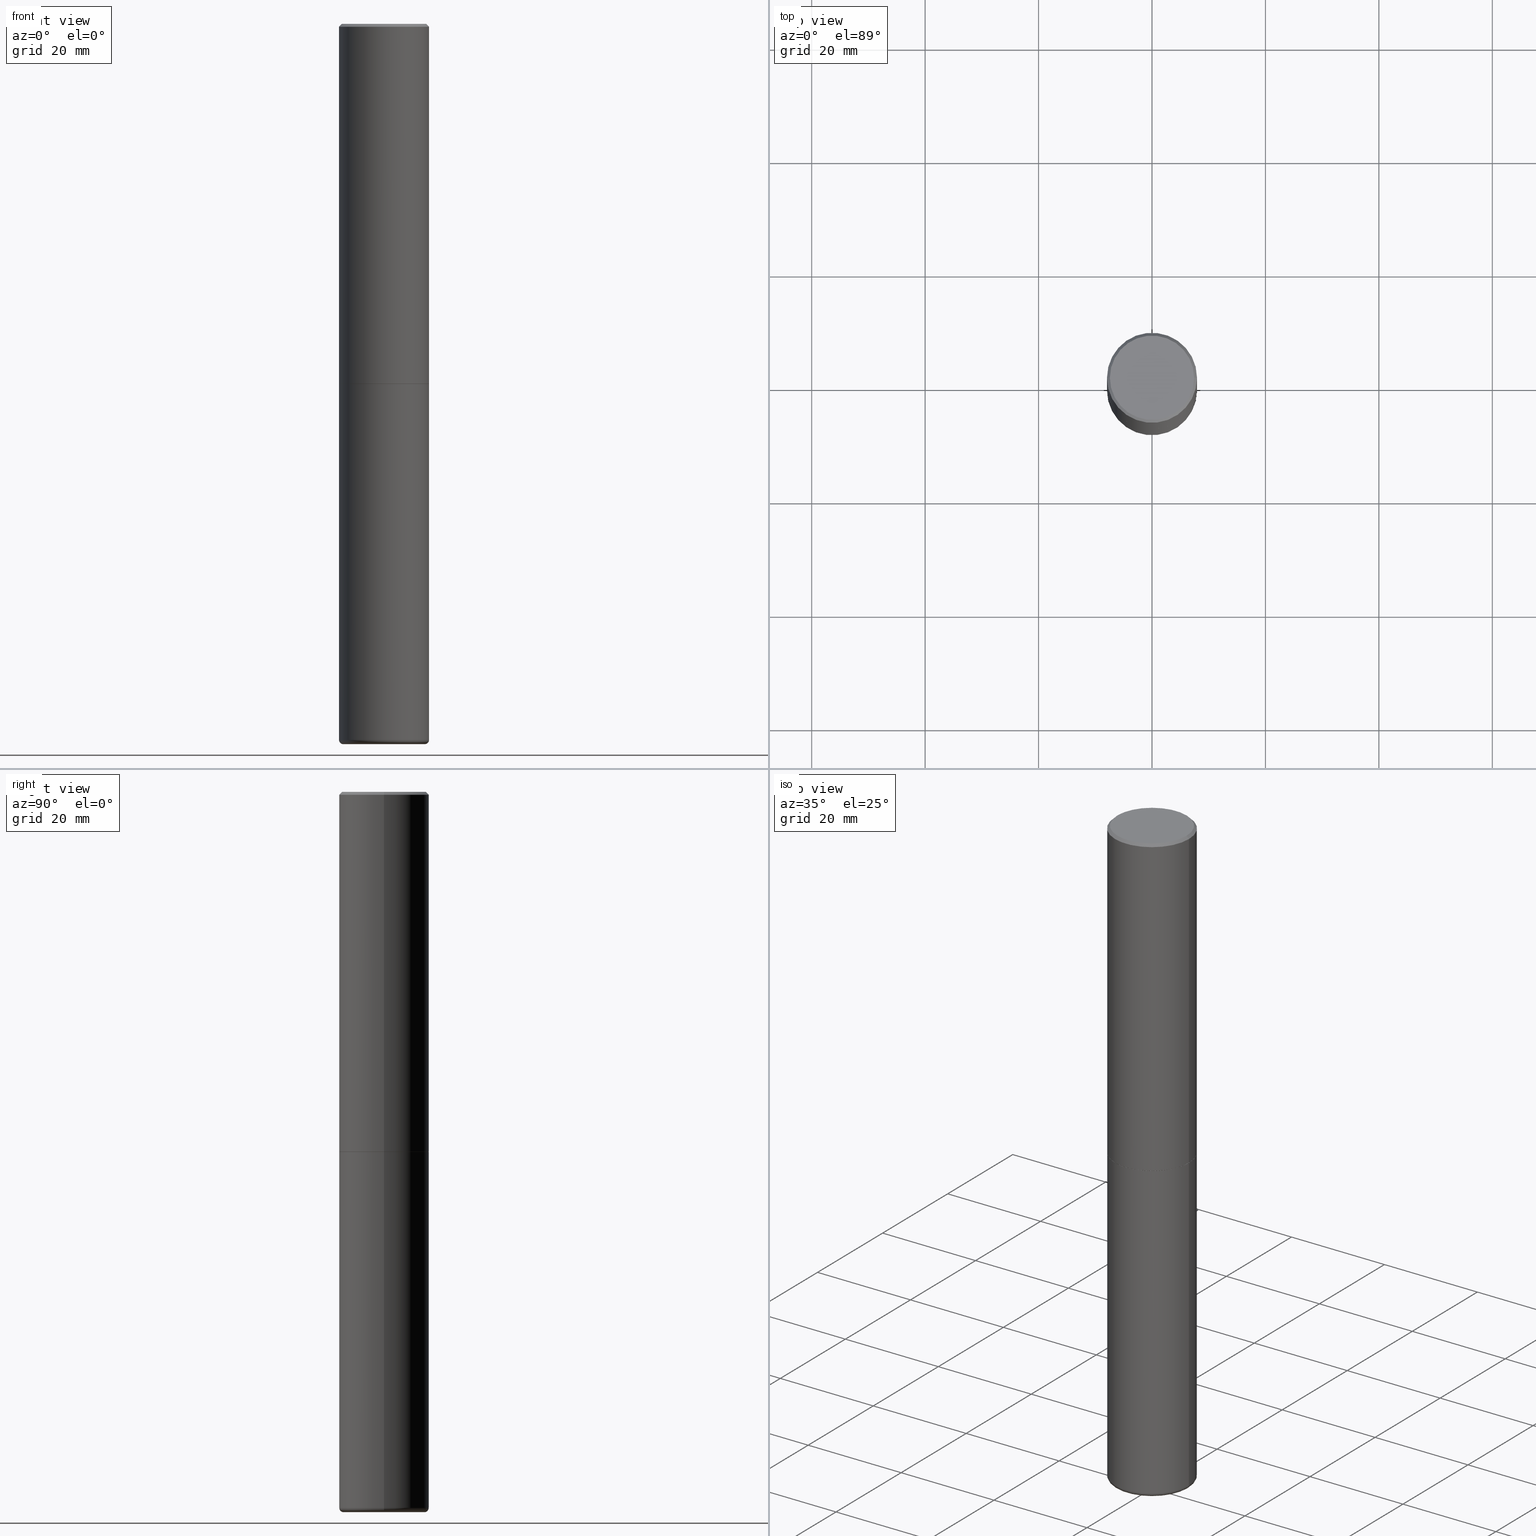
[diagram: canonical four-view strip — front | top / right | iso, engineering-drawing reading convention]
A machine part, canonical four-view strip (front | top / right | iso — engineering-drawing reading convention). The complete STEP part file that produces these views, byte-faithful:
ISO-10303-21;
HEADER;
FILE_DESCRIPTION (( 'STEP AP203' ),
    '1' );
FILE_NAME ('32570.STEP',
    '2022-04-26T19:38:32',
    ( '' ),
    ( '' ),
    'SwSTEP 2.0',
    'SolidWorks 2022',
    '' );
FILE_SCHEMA (( 'CONFIG_CONTROL_DESIGN' ));
ENDSEC;

DATA;
#1 = DIRECTION ( 'NONE',  ( -6.982962677686266711E-15, -1.000000000000000000, 3.491481338843145583E-15 ) ) ;
#2 = VECTOR ( 'NONE', #71, 39.37007874015748143 ) ;
#3 = DIRECTION ( 'NONE',  ( -2.445468806185136877E-29, 3.491481338843145188E-15, 1.000000000000000000 ) ) ;
#4 = DIRECTION ( 'NONE',  ( 1.000000000000000000, -6.982962677686266711E-15, 0.000000000000000000 ) ) ;
#5 = DATE_AND_TIME ( #36, #161 ) ;
#6 = CARTESIAN_POINT ( 'NONE',  ( 4.890937612370288047E-31, -6.982962677686311331E-17, -0.02000000000000005940 ) ) ;
#7 = CARTESIAN_POINT ( 'NONE',  ( -0.3114999999999999991, -6.515362725215152081E-15, -2.500000000000000000 ) ) ;
#8 = CIRCLE ( 'NONE', #306, 0.2819764278068817576 ) ;
#9 = CIRCLE ( 'NONE', #329, 0.3125000000000000555 ) ;
#10 = DIRECTION ( 'NONE',  ( 1.000000000000000000, -6.982962677686334553E-15, 0.000000000000000000 ) ) ;
#11 = DIRECTION ( 'NONE',  ( -2.445468806185136877E-29, 3.491481338843145188E-15, 1.000000000000000000 ) ) ;
#12 = CC_DESIGN_PERSON_AND_ORGANIZATION_ASSIGNMENT ( #404, #131, ( #362 ) ) ;
#13 = CARTESIAN_POINT ( 'NONE',  ( 3.440202120538231918E-18, -1.744020596027749936E-14, -4.995073513999096271 ) ) ;
#14 = FACE_OUTER_BOUND ( 'NONE', #268, .T. ) ;
#15 = DIRECTION ( 'NONE',  ( -2.445468806185136597E-29, 3.491481338843145583E-15, 1.000000000000000000 ) ) ;
#16 = VERTEX_POINT ( 'NONE', #409 ) ;
#17 = ADVANCED_FACE ( 'NONE', ( #346 ), #171, .F. ) ;
#18 = ORIENTED_EDGE ( 'NONE', *, *, #356, .F. ) ;
#19 = CARTESIAN_POINT ( 'NONE',  ( 0.000000000000000000, 0.000000000000000000, 0.000000000000000000 ) ) ;
#20 = APPLICATION_CONTEXT ( 'configuration controlled 3d designs of mechanical parts and assemblies' ) ;
#21 = APPROVAL_PERSON_ORGANIZATION ( #335, #178, #240 ) ;
#22 = ADVANCED_FACE ( 'NONE', ( #378 ), #104, .T. ) ;
#23 = ORIENTED_EDGE ( 'NONE', *, *, #228, .T. ) ;
#24 = CC_DESIGN_PERSON_AND_ORGANIZATION_ASSIGNMENT ( #28, #135, ( #239 ) ) ;
#25 = ORIENTED_EDGE ( 'NONE', *, *, #395, .T. ) ;
#26 = APPROVAL_ROLE ( '' ) ;
#27 = ORIENTED_EDGE ( 'NONE', *, *, #210, .T. ) ;
#28 = PERSON_AND_ORGANIZATION ( #273, #220 ) ;
#29 = EDGE_CURVE ( 'NONE', #296, #238, #383, .T. ) ;
#30 = ORIENTED_EDGE ( 'NONE', *, *, #158, .F. ) ;
#31 = DIRECTION ( 'NONE',  ( 1.000000000000000000, -6.982962677686266711E-15, 4.876067333457696203E-29 ) ) ;
#32 = CARTESIAN_POINT ( 'NONE',  ( -0.2819764278068823682, -1.548835986976738614E-14, -4.999995430854689893 ) ) ;
#33 = PERSON_AND_ORGANIZATION ( #273, #220 ) ;
#34 = CC_DESIGN_APPROVAL ( #55, ( #389 ) ) ;
#35 = ORIENTED_EDGE ( 'NONE', *, *, #210, .F. ) ;
#36 = CALENDAR_DATE ( 2022, 26, 4 ) ;
#37 = CC_DESIGN_PERSON_AND_ORGANIZATION_ASSIGNMENT ( #102, #410, ( #362 ) ) ;
#38 = DIRECTION ( 'NONE',  ( 1.000000000000000000, -6.982962677686262766E-15, 0.000000000000000000 ) ) ;
#39 = EDGE_CURVE ( 'NONE', #238, #393, #245, .T. ) ;
#40 = CARTESIAN_POINT ( 'NONE',  ( -3.440202120293926164E-18, -1.744020596027749936E-14, -4.995073513999096271 ) ) ;
#41 = DIRECTION ( 'NONE',  ( 2.445468806185136597E-29, -3.491481338843145583E-15, -1.000000000000000000 ) ) ;
#42 = LOCAL_TIME ( 15, 38, 32.00000000000000000, #276 ) ;
#43 = CARTESIAN_POINT ( 'NONE',  ( 1.222733285722335682E-28, -1.745739074113014277E-14, -4.999995430854689893 ) ) ;
#44 = DIRECTION ( 'NONE',  ( 2.438088387897960049E-29, -3.491481338843145188E-15, -1.000000000000000000 ) ) ;
#45 = DIRECTION ( 'NONE',  ( -2.445468806185136597E-29, 3.491481338843145583E-15, 1.000000000000000000 ) ) ;
#46 = VERTEX_POINT ( 'NONE', #140 ) ;
#47 = DIRECTION ( 'NONE',  ( 7.105427357601001859E-15, 1.000000000000000000, -3.491481338843145583E-15 ) ) ;
#48 = AXIS2_PLACEMENT_3D ( 'NONE', #243, #244, #372 ) ;
#49 =( GEOMETRIC_REPRESENTATION_CONTEXT ( 3 ) GLOBAL_UNCERTAINTY_ASSIGNED_CONTEXT ( ( #376 ) ) GLOBAL_UNIT_ASSIGNED_CONTEXT ( ( #54, #193, #159 ) ) REPRESENTATION_CONTEXT ( 'NONE', 'WORKASPACE' ) );
#50 = ORIENTED_EDGE ( 'NONE', *, *, #384, .T. ) ;
#51 = CYLINDRICAL_SURFACE ( 'NONE', #83, 0.3124999999999998890 ) ;
#52 = CARTESIAN_POINT ( 'NONE',  ( 0.3124999999999998890, -2.182175836776957558E-15, 1.523805242436229235E-29 ) ) ;
#53 = ORIENTED_EDGE ( 'NONE', *, *, #282, .T. ) ;
#54 =( CONVERSION_BASED_UNIT ( 'INCH', #401 ) LENGTH_UNIT ( ) NAMED_UNIT ( #152 ) );
#55 = APPROVAL ( #202, 'UNSPECIFIED' ) ;
#56 = CIRCLE ( 'NONE', #388, 0.3125000000000000555 ) ;
#57 = ORIENTED_EDGE ( 'NONE', *, *, #347, .F. ) ;
#58 = LOCAL_TIME ( 15, 38, 32.00000000000000000, #84 ) ;
#59 = DIRECTION ( 'NONE',  ( 1.000000000000000000, -6.982962677686264344E-15, 0.000000000000000000 ) ) ;
#60 = EDGE_LOOP ( 'NONE', ( #432, #154, #27, #57 ) ) ;
#61 = VERTEX_POINT ( 'NONE', #32 ) ;
#62 = EDGE_CURVE ( 'NONE', #296, #61, #196, .T. ) ;
#63 = ORIENTED_EDGE ( 'NONE', *, *, #434, .F. ) ;
#64 = APPROVAL_STATUS ( 'not_yet_approved' ) ;
#65 = AXIS2_PLACEMENT_3D ( 'NONE', #351, #217, #317 ) ;
#66 = CONICAL_SURFACE ( 'NONE', #358, 2255.510300424564321, 1.553343034274960788 ) ;
#67 = CARTESIAN_POINT ( 'NONE',  ( 6.113672015462842613E-29, -8.728703347107864943E-15, -2.500000000000000000 ) ) ;
#68 = DIRECTION ( 'NONE',  ( -2.445468806185136597E-29, 3.491481338843145583E-15, 1.000000000000000000 ) ) ;
#69 = SECURITY_CLASSIFICATION_LEVEL ( 'unclassified' ) ;
#70 = EDGE_CURVE ( 'NONE', #298, #80, #345, .T. ) ;
#71 = DIRECTION ( 'NONE',  ( 0.7071067811865472397, -7.319954787623254468E-15, -0.7071067811865477948 ) ) ;
#72 = AXIS2_PLACEMENT_3D ( 'NONE', #67, #99, #374 ) ;
#73 = DIRECTION ( 'NONE',  ( -2.445468806185136597E-29, 3.491481338843145583E-15, 1.000000000000000000 ) ) ;
#74 = FACE_OUTER_BOUND ( 'NONE', #60, .T. ) ;
#75 = DIRECTION ( 'NONE',  ( 0.9998476951563914916, -6.920387862090559512E-15, -0.01745240643727605234 ) ) ;
#76 = DIRECTION ( 'NONE',  ( -2.445468806185136597E-29, 3.491481338843145583E-15, 1.000000000000000000 ) ) ;
#77 = CARTESIAN_POINT ( 'NONE',  ( 1.084935959191941074E-27, -1.549001011903226036E-13, -44.36515225415657682 ) ) ;
#78 = VECTOR ( 'NONE', #142, 39.37007874015748143 ) ;
#79 = FACE_OUTER_BOUND ( 'NONE', #426, .T. ) ;
#80 = VERTEX_POINT ( 'NONE', #339 ) ;
#81 = CARTESIAN_POINT ( 'NONE',  ( 4.890937612370288047E-31, -6.982962677686311331E-17, -0.02000000000000005940 ) ) ;
#82 = LINE ( 'NONE', #424, #126 ) ;
#83 = AXIS2_PLACEMENT_3D ( 'NONE', #417, #45, #350 ) ;
#84 = COORDINATED_UNIVERSAL_TIME_OFFSET ( 5, 0, .BEHIND. ) ;
#85 = CC_DESIGN_DATE_AND_TIME_ASSIGNMENT ( #5, #139, ( #389 ) ) ;
#86 = VERTEX_POINT ( 'NONE', #280 ) ;
#87 = DIRECTION ( 'NONE',  ( 1.000000000000000000, -6.982962677686269077E-15, 0.000000000000000000 ) ) ;
#88 = DESIGN_CONTEXT ( 'detailed design', #20, 'design' ) ;
#89 = AXIS2_PLACEMENT_3D ( 'NONE', #223, #385, #382 ) ;
#90 = ORIENTED_EDGE ( 'NONE', *, *, #333, .F. ) ;
#91 = AXIS2_PLACEMENT_3D ( 'NONE', #117, #394, #397 ) ;
#92 = DIRECTION ( 'NONE',  ( 1.000000000000000000, -6.982962677686265133E-15, 0.000000000000000000 ) ) ;
#93 = ORIENTED_EDGE ( 'NONE', *, *, #114, .T. ) ;
#94 = MECHANICAL_CONTEXT ( 'NONE', #326, 'mechanical' ) ;
#95 = ORIENTED_EDGE ( 'NONE', *, *, #192, .T. ) ;
#96 = PERSON_AND_ORGANIZATION_ROLE ( 'creator' ) ;
#97 = VERTEX_POINT ( 'NONE', #180 ) ;
#98 = AXIS2_PLACEMENT_3D ( 'NONE', #134, #416, #31 ) ;
#99 = DIRECTION ( 'NONE',  ( -2.445468806185136597E-29, 3.491481338843145583E-15, 1.000000000000000000 ) ) ;
#100 = DATE_AND_TIME ( #267, #151 ) ;
#101 = CARTESIAN_POINT ( 'NONE',  ( 0.3124999999999996669, -2.213735251080464545E-15, -0.02000000000000005940 ) ) ;
#102 = PERSON_AND_ORGANIZATION ( #273, #220 ) ;
#103 = AXIS2_PLACEMENT_3D ( 'NONE', #313, #44, #185 ) ;
#104 = CYLINDRICAL_SURFACE ( 'NONE', #150, 0.3124999999999998890 ) ;
#105 = DIRECTION ( 'NONE',  ( -2.445468806185136597E-29, 3.491481338843145583E-15, 1.000000000000000000 ) ) ;
#106 = FACE_OUTER_BOUND ( 'NONE', #188, .T. ) ;
#107 = CARTESIAN_POINT ( 'NONE',  ( 0.2819764278068823682, -1.939188945951802545E-14, -4.999995430854689893 ) ) ;
#108 = CYLINDRICAL_SURFACE ( 'NONE', #89, 0.3124999999999998890 ) ;
#109 = CIRCLE ( 'NONE', #429, 0.3114999999999999991 ) ;
#110 = VECTOR ( 'NONE', #11, 39.37007874015748143 ) ;
#111 = ORIENTED_EDGE ( 'NONE', *, *, #141, .T. ) ;
#112 = FACE_OUTER_BOUND ( 'NONE', #442, .T. ) ;
#113 = CARTESIAN_POINT ( 'NONE',  ( 0.3124999999999996669, -2.213735251080464545E-15, -0.02000000000000005940 ) ) ;
#114 = EDGE_CURVE ( 'NONE', #86, #16, #190, .T. ) ;
#115 = PRODUCT_DEFINITION_SHAPE ( 'NONE', 'NONE',  #389 ) ;
#116 = EDGE_LOOP ( 'NONE', ( #162, #423, #265, #200 ) ) ;
#117 = CARTESIAN_POINT ( 'NONE',  ( 6.113672015462842613E-29, -8.728703347107864943E-15, -2.500000000000000000 ) ) ;
#118 = VECTOR ( 'NONE', #3, 39.37007874015748143 ) ;
#119 = CIRCLE ( 'NONE', #252, 0.3125000000000000000 ) ;
#120 = LINE ( 'NONE', #52, #315 ) ;
#121 = EDGE_LOOP ( 'NONE', ( #331, #261, #50, #400 ) ) ;
#122 = PERSON_AND_ORGANIZATION_ROLE ( 'design_owner' ) ;
#123 = ORIENTED_EDGE ( 'NONE', *, *, #70, .T. ) ;
#124 = PERSON_AND_ORGANIZATION ( #273, #220 ) ;
#125 = EDGE_CURVE ( 'NONE', #80, #365, #225, .T. ) ;
#126 = VECTOR ( 'NONE', #419, 39.37007874015748143 ) ;
#127 = EDGE_LOOP ( 'NONE', ( #405, #168, #303 ) ) ;
#128 = CONICAL_SURFACE ( 'NONE', #307, 2255.510300424564321, 1.553343034274960788 ) ;
#129 = DIRECTION ( 'NONE',  ( -2.445468806185136597E-29, 3.491481338843145583E-15, 1.000000000000000000 ) ) ;
#130 = EDGE_LOOP ( 'NONE', ( #299, #438 ) ) ;
#131 = PERSON_AND_ORGANIZATION_ROLE ( 'creator' ) ;
#132 = ORIENTED_EDGE ( 'NONE', *, *, #186, .F. ) ;
#133 = MANIFOLD_SOLID_BREP ( 'Body-Move/Copy2[2]', #377 ) ;
#134 = CARTESIAN_POINT ( 'NONE',  ( -3.131554243005659264E-46, 4.471029511141341874E-32, 1.280553747030123384E-17 ) ) ;
#135 = PERSON_AND_ORGANIZATION_ROLE ( 'classification_officer' ) ;
#136 = MANIFOLD_SOLID_BREP ( 'Body-Move/Copy2[1]', #293 ) ;
#137 = CARTESIAN_POINT ( 'NONE',  ( 1.222733285722335682E-28, -1.745739074113014277E-14, -4.999995430854689893 ) ) ;
#138 = DIRECTION ( 'NONE',  ( -2.445468806185136597E-29, 3.491481338843145583E-15, 1.000000000000000000 ) ) ;
#139 = DATE_TIME_ROLE ( 'creation_date' ) ;
#140 = CARTESIAN_POINT ( 'NONE',  ( -0.3114999999999999991, -6.510064270866929679E-15, -2.500000000000000000 ) ) ;
#141 = EDGE_CURVE ( 'NONE', #363, #61, #411, .T. ) ;
#142 = DIRECTION ( 'NONE',  ( -0.7071067811866441621, 7.493145998870704414E-15, 0.7071067811864508723 ) ) ;
#143 = AXIS2_PLACEMENT_3D ( 'NONE', #137, #73, #375 ) ;
#144 = CONICAL_SURFACE ( 'NONE', #262, 0.3114999999999999991, 0.7853981633975849475 ) ;
#145 = CARTESIAN_POINT ( 'NONE',  ( 1.215397996674012611E-28, -1.735266225405043020E-14, -4.969999999999998863 ) ) ;
#146 = DIRECTION ( 'NONE',  ( 2.445468806185136597E-29, -3.491481338843145583E-15, -1.000000000000000000 ) ) ;
#147 = CARTESIAN_POINT ( 'NONE',  ( 0.3124999999999997224, -1.953483809082738382E-14, -4.969999999999998863 ) ) ;
#148 = ADVANCED_FACE ( 'NONE', ( #106 ), #278, .T. ) ;
#149 = FACE_OUTER_BOUND ( 'NONE', #121, .T. ) ;
#150 = AXIS2_PLACEMENT_3D ( 'NONE', #246, #412, #241 ) ;
#151 = LOCAL_TIME ( 15, 38, 32.00000000000000000, #167 ) ;
#152 = DIMENSIONAL_EXPONENTS ( 1.000000000000000000, 0.000000000000000000, 0.000000000000000000, 0.000000000000000000, 0.000000000000000000, 0.000000000000000000, 0.000000000000000000 ) ;
#153 = CARTESIAN_POINT ( 'NONE',  ( -3.131554243005659264E-46, 4.471029511141341874E-32, 1.280553747030123384E-17 ) ) ;
#154 = ORIENTED_EDGE ( 'NONE', *, *, #158, .T. ) ;
#155 = CARTESIAN_POINT ( 'NONE',  ( 1.221769874338742069E-28, -1.743676575815708318E-14, -4.995073513999096271 ) ) ;
#156 = ADVANCED_FACE ( 'NONE', ( #308 ), #219, .T. ) ;
#157 = FACE_OUTER_BOUND ( 'NONE', #130, .T. ) ;
#158 = EDGE_CURVE ( 'NONE', #86, #365, #312, .T. ) ;
#159 =( NAMED_UNIT ( * ) SI_UNIT ( $, .STERADIAN. ) SOLID_ANGLE_UNIT ( ) );
#160 = CIRCLE ( 'NONE', #72, 0.3114999999999999991 ) ;
#161 = LOCAL_TIME ( 15, 38, 32.00000000000000000, #340 ) ;
#162 = ORIENTED_EDGE ( 'NONE', *, *, #39, .T. ) ;
#163 = ADVANCED_FACE ( 'NONE', ( #74 ), #302, .T. ) ;
#164 = ORIENTED_EDGE ( 'NONE', *, *, #186, .T. ) ;
#165 = ORIENTED_EDGE ( 'NONE', *, *, #368, .T. ) ;
#166 = ORIENTED_EDGE ( 'NONE', *, *, #62, .F. ) ;
#167 = COORDINATED_UNIVERSAL_TIME_OFFSET ( 5, 0, .BEHIND. ) ;
#168 = ORIENTED_EDGE ( 'NONE', *, *, #333, .T. ) ;
#169 = DATE_AND_TIME ( #174, #42 ) ;
#170 = DIRECTION ( 'NONE',  ( -2.445468806185136597E-29, 3.491481338843145583E-15, 1.000000000000000000 ) ) ;
#171 = PLANE ( 'NONE',  #250 ) ;
#172 = DIRECTION ( 'NONE',  ( -0.9998476951563914916, 6.920964387254063099E-15, -0.01745240643727605234 ) ) ;
#173 = AXIS2_PLACEMENT_3D ( 'NONE', #153, #170, #373 ) ;
#174 = CALENDAR_DATE ( 2022, 26, 4 ) ;
#175 = LOCAL_TIME ( 15, 38, 32.00000000000000000, #209 ) ;
#176 = CARTESIAN_POINT ( 'NONE',  ( 6.111226546656657010E-29, -8.725211865769021935E-15, -2.499000000000000110 ) ) ;
#177 = DATE_TIME_ROLE ( 'classification_date' ) ;
#178 = APPROVAL ( #64, 'UNSPECIFIED' ) ;
#179 = EDGE_CURVE ( 'NONE', #46, #222, #160, .T. ) ;
#180 = CARTESIAN_POINT ( 'NONE',  ( -0.3125000000000000000, -1.082023675132883449E-14, -2.500000000000000000 ) ) ;
#181 = EDGE_LOOP ( 'NONE', ( #361, #164, #367, #304 ) ) ;
#182 = CARTESIAN_POINT ( 'NONE',  ( 6.113672015462842613E-29, -8.728703347107864943E-15, -2.500000000000000000 ) ) ;
#183 = AXIS2_PLACEMENT_3D ( 'NONE', #81, #146, #221 ) ;
#184 = AXIS2_PLACEMENT_3D ( 'NONE', #19, #430, #300 ) ;
#185 = DIRECTION ( 'NONE',  ( -1.000000000000000000, 6.982962677686265922E-15, -4.876176775795935793E-29 ) ) ;
#186 = EDGE_CURVE ( 'NONE', #298, #263, #56, .T. ) ;
#187 = CARTESIAN_POINT ( 'NONE',  ( -0.3125000000000000555, -2.177074697022625986E-15, -2.499000000000000110 ) ) ;
#188 = EDGE_LOOP ( 'NONE', ( #18, #95, #205, #414 ) ) ;
#189 = FACE_OUTER_BOUND ( 'NONE', #284, .T. ) ;
#190 = CIRCLE ( 'NONE', #98, 0.2924999999999995937 ) ;
#191 = ORIENTED_EDGE ( 'NONE', *, *, #179, .T. ) ;
#192 = EDGE_CURVE ( 'NONE', #61, #296, #8, .T. ) ;
#193 =( NAMED_UNIT ( * ) PLANE_ANGLE_UNIT ( ) SI_UNIT ( $, .RADIAN. ) );
#194 = CC_DESIGN_PERSON_AND_ORGANIZATION_ASSIGNMENT ( #33, #96, ( #389 ) ) ;
#195 = ORIENTED_EDGE ( 'NONE', *, *, #301, .T. ) ;
#196 = CIRCLE ( 'NONE', #143, 0.2819764278068817576 ) ;
#197 = VECTOR ( 'NONE', #353, 39.37007874015748143 ) ;
#198 = EDGE_LOOP ( 'NONE', ( #25, #123, #35, #259 ) ) ;
#199 = DIRECTION ( 'NONE',  ( 0.7071067811866441621, -2.468850131083269169E-15, 0.7071067811864508723 ) ) ;
#200 = ORIENTED_EDGE ( 'NONE', *, *, #384, .F. ) ;
#201 = CC_DESIGN_PERSON_AND_ORGANIZATION_ASSIGNMENT ( #428, #122, ( #242 ) ) ;
#202 = APPROVAL_STATUS ( 'not_yet_approved' ) ;
#203 = VERTEX_POINT ( 'NONE', #381 ) ;
#204 = AXIS2_PLACEMENT_3D ( 'NONE', #349, #1, #10 ) ;
#205 = ORIENTED_EDGE ( 'NONE', *, *, #29, .T. ) ;
#206 = CIRCLE ( 'NONE', #230, 0.02999999999999971440 ) ;
#207 = CARTESIAN_POINT ( 'NONE',  ( 2.042516583223230173E-15, 0.2924999999999995937, -1.014855522876468194E-15 ) ) ;
#208 = DIRECTION ( 'NONE',  ( 1.000000000000000000, -6.982962677686264344E-15, 0.000000000000000000 ) ) ;
#209 = COORDINATED_UNIVERSAL_TIME_OFFSET ( 5, 0, .BEHIND. ) ;
#210 = EDGE_CURVE ( 'NONE', #365, #80, #407, .T. ) ;
#211 = DIRECTION ( 'NONE',  ( 2.445468806185136597E-29, -3.491481338843145583E-15, -1.000000000000000000 ) ) ;
#212 = CALENDAR_DATE ( 2022, 26, 4 ) ;
#213 = VECTOR ( 'NONE', #199, 39.37007874015748143 ) ;
#214 = CARTESIAN_POINT ( 'NONE',  ( 1.215397996674012611E-28, -1.735266225405043020E-14, -4.969999999999998863 ) ) ;
#215 = DIRECTION ( 'NONE',  ( -1.000000000000000000, 6.982962677686266711E-15, 0.000000000000000000 ) ) ;
#216 = LINE ( 'NONE', #13, #288 ) ;
#217 = DIRECTION ( 'NONE',  ( -2.445468806185136597E-29, 3.491481338843145583E-15, 1.000000000000000000 ) ) ;
#218 = CARTESIAN_POINT ( 'NONE',  ( -0.3124999999999996669, 2.112346210000092682E-15, -0.02000000000000005940 ) ) ;
#219 = TOROIDAL_SURFACE ( 'NONE', #48, 0.2825000000000000289, 0.02999999999999973868 ) ;
#220 = ORGANIZATION ( 'UNSPECIFIED', 'UNSPECIFIED', '' ) ;
#221 = DIRECTION ( 'NONE',  ( -1.000000000000000000, 6.982962677686266711E-15, 0.000000000000000000 ) ) ;
#222 = VERTEX_POINT ( 'NONE', #422 ) ;
#223 = CARTESIAN_POINT ( 'NONE',  ( 0.000000000000000000, 0.000000000000000000, 0.000000000000000000 ) ) ;
#224 = CARTESIAN_POINT ( 'NONE',  ( 6.113672015462842613E-29, -8.728703347107864943E-15, -2.500000000000000000 ) ) ;
#225 = CIRCLE ( 'NONE', #370, 0.3124999999999996669 ) ;
#226 = CALENDAR_DATE ( 2022, 26, 4 ) ;
#227 = ORIENTED_EDGE ( 'NONE', *, *, #356, .T. ) ;
#228 = EDGE_CURVE ( 'NONE', #16, #86, #320, .T. ) ;
#229 = FACE_OUTER_BOUND ( 'NONE', #396, .T. ) ;
#230 = AXIS2_PLACEMENT_3D ( 'NONE', #386, #47, #321 ) ;
#231 = CC_DESIGN_DATE_AND_TIME_ASSIGNMENT ( #169, #177, ( #239 ) ) ;
#232 = ORIENTED_EDGE ( 'NONE', *, *, #228, .F. ) ;
#233 = ORIENTED_EDGE ( 'NONE', *, *, #347, .T. ) ;
#234 = CARTESIAN_POINT ( 'NONE',  ( 6.113672015462842613E-29, -8.728703347107864943E-15, -2.500000000000000000 ) ) ;
#235 = ORIENTED_EDGE ( 'NONE', *, *, #125, .T. ) ;
#236 = APPROVAL_STATUS ( 'not_yet_approved' ) ;
#237 = ADVANCED_FACE ( 'NONE', ( #14 ), #420, .T. ) ;
#238 = VERTEX_POINT ( 'NONE', #147 ) ;
#239 = SECURITY_CLASSIFICATION ( '', '', #69 ) ;
#240 = APPROVAL_ROLE ( '' ) ;
#241 = DIRECTION ( 'NONE',  ( 1.000000000000000000, -6.982962677686266711E-15, 4.876176775795935232E-29 ) ) ;
#242 = PRODUCT ( '32570', '32570', '', ( #94 ) ) ;
#243 = CARTESIAN_POINT ( 'NONE',  ( 1.215397996674012611E-28, -1.735266225405043020E-14, -4.969999999999998863 ) ) ;
#244 = DIRECTION ( 'NONE',  ( -2.445468806185136597E-29, 3.491481338843145583E-15, 1.000000000000000000 ) ) ;
#245 = CIRCLE ( 'NONE', #336, 0.3124999999999997224 ) ;
#246 = CARTESIAN_POINT ( 'NONE',  ( 0.000000000000000000, 0.000000000000000000, 0.000000000000000000 ) ) ;
#247 = CARTESIAN_POINT ( 'NONE',  ( -0.3124999999999998890, 2.220446049250312292E-15, -1.537167215704657391E-29 ) ) ;
#248 = DIRECTION ( 'NONE',  ( 1.000000000000000000, -6.982962677686260400E-15, 0.000000000000000000 ) ) ;
#249 = DIRECTION ( 'NONE',  ( 1.000000000000000000, -6.982962677686265133E-15, 0.000000000000000000 ) ) ;
#250 = AXIS2_PLACEMENT_3D ( 'NONE', #207, #305, #342 ) ;
#251 = FACE_OUTER_BOUND ( 'NONE', #198, .T. ) ;
#252 = AXIS2_PLACEMENT_3D ( 'NONE', #224, #15, #249 ) ;
#253 = PLANE ( 'NONE',  #103 ) ;
#254 = LINE ( 'NONE', #7, #78 ) ;
#255 = DIRECTION ( 'NONE',  ( -1.000000000000000000, 6.982962677686266711E-15, 0.000000000000000000 ) ) ;
#256 = AXIS2_PLACEMENT_3D ( 'NONE', #279, #415, #92 ) ;
#257 = LINE ( 'NONE', #392, #213 ) ;
#258 = EDGE_CURVE ( 'NONE', #263, #365, #82, .T. ) ;
#259 = ORIENTED_EDGE ( 'NONE', *, *, #258, .F. ) ;
#260 = FACE_OUTER_BOUND ( 'NONE', #127, .T. ) ;
#261 = ORIENTED_EDGE ( 'NONE', *, *, #418, .T. ) ;
#262 = AXIS2_PLACEMENT_3D ( 'NONE', #234, #129, #87 ) ;
#263 = VERTEX_POINT ( 'NONE', #316 ) ;
#264 = DIRECTION ( 'NONE',  ( 2.445468806185136597E-29, -3.491481338843145583E-15, -1.000000000000000000 ) ) ;
#265 = ORIENTED_EDGE ( 'NONE', *, *, #301, .F. ) ;
#266 = PRODUCT_RELATED_PRODUCT_CATEGORY ( 'detail', '', ( #242 ) ) ;
#267 = CALENDAR_DATE ( 2022, 26, 4 ) ;
#268 = EDGE_LOOP ( 'NONE', ( #30, #232, #233, #235 ) ) ;
#269 = APPROVAL_DATE_TIME ( #359, #55 ) ;
#270 = AXIS2_PLACEMENT_3D ( 'NONE', #6, #211, #215 ) ;
#271 = CARTESIAN_POINT ( 'NONE',  ( 4.890937612370288047E-31, -6.982962677686311331E-17, -0.02000000000000005940 ) ) ;
#272 = APPROVAL_PERSON_ORGANIZATION ( #369, #325, #413 ) ;
#273 = PERSON ( 'UNSPECIFIED', 'UNSPECIFIED', 'UNSPECIFIED', ('UNSPECIFIED'), ('UNSPECIFIED'), ('UNSPECIFIED') ) ;
#274 = DIRECTION ( 'NONE',  ( 1.000000000000000000, -6.982962677686262766E-15, 4.883557194083111219E-29 ) ) ;
#275 = DIRECTION ( 'NONE',  ( -2.445468806185136597E-29, 3.491481338843145583E-15, 1.000000000000000000 ) ) ;
#276 = COORDINATED_UNIVERSAL_TIME_OFFSET ( 5, 0, .BEHIND. ) ;
#277 = DIRECTION ( 'NONE',  ( -2.445468806185136597E-29, 3.491481338843145583E-15, 1.000000000000000000 ) ) ;
#278 = TOROIDAL_SURFACE ( 'NONE', #398, 0.2825000000000000289, 0.02999999999999973868 ) ;
#279 = CARTESIAN_POINT ( 'NONE',  ( 6.113672015462842613E-29, -8.728703347107864943E-15, -2.500000000000000000 ) ) ;
#280 = CARTESIAN_POINT ( 'NONE',  ( 0.2924999999999995937, -2.110215457714317564E-15, 1.280553747031575381E-17 ) ) ;
#281 = DIRECTION ( 'NONE',  ( -2.445468806185136597E-29, 3.491481338843145583E-15, 1.000000000000000000 ) ) ;
#282 = EDGE_CURVE ( 'NONE', #222, #46, #109, .T. ) ;
#283 = FACE_OUTER_BOUND ( 'NONE', #181, .T. ) ;
#284 = EDGE_LOOP ( 'NONE', ( #53, #165, #441, #63 ) ) ;
#285 = VECTOR ( 'NONE', #172, 39.37007874015747433 ) ;
#286 = ADVANCED_FACE ( 'NONE', ( #251 ), #108, .T. ) ;
#287 = DIRECTION ( 'NONE',  ( 1.000000000000000000, -6.982962677686269077E-15, 0.000000000000000000 ) ) ;
#288 = VECTOR ( 'NONE', #75, 39.37007874015747433 ) ;
#289 = CARTESIAN_POINT ( 'NONE',  ( 6.113672015462842613E-29, -8.728703347107864943E-15, -2.500000000000000000 ) ) ;
#290 = ORIENTED_EDGE ( 'NONE', *, *, #368, .F. ) ;
#291 = CARTESIAN_POINT ( 'NONE',  ( 6.111226546656657010E-29, -8.725211865769021935E-15, -2.499000000000000110 ) ) ;
#292 = ADVANCED_FACE ( 'NONE', ( #149 ), #380, .T. ) ;
#293 = CLOSED_SHELL ( 'NONE', ( #22, #156, #440, #341, #148, #292, #348 ) ) ;
#294 = ADVANCED_FACE ( 'NONE', ( #283 ), #51, .T. ) ;
#295 = CC_DESIGN_SECURITY_CLASSIFICATION ( #239, ( #362 ) ) ;
#296 = VERTEX_POINT ( 'NONE', #107 ) ;
#297 = APPLICATION_PROTOCOL_DEFINITION ( 'international standard', 'config_control_design', 1994, #326 ) ;
#298 = VERTEX_POINT ( 'NONE', #187 ) ;
#299 = ORIENTED_EDGE ( 'NONE', *, *, #282, .F. ) ;
#300 = DIRECTION ( 'NONE',  ( 1.000000000000000000, 0.000000000000000000, 0.000000000000000000 ) ) ;
#301 = EDGE_CURVE ( 'NONE', #203, #97, #119, .T. ) ;
#302 = CONICAL_SURFACE ( 'NONE', #270, 0.3124999999999996669, 0.7853981633974479459 ) ;
#303 = ORIENTED_EDGE ( 'NONE', *, *, #192, .F. ) ;
#304 = ORIENTED_EDGE ( 'NONE', *, *, #125, .F. ) ;
#305 = DIRECTION ( 'NONE',  ( 2.438088387897960049E-29, -3.491481338843145188E-15, -1.000000000000000000 ) ) ;
#306 = AXIS2_PLACEMENT_3D ( 'NONE', #43, #76, #248 ) ;
#307 = AXIS2_PLACEMENT_3D ( 'NONE', #77, #41, #357 ) ;
#308 = FACE_OUTER_BOUND ( 'NONE', #327, .T. ) ;
#309 = SHAPE_DEFINITION_REPRESENTATION ( #115, #435 ) ;
#310 = ORIENTED_EDGE ( 'NONE', *, *, #62, .T. ) ;
#311 = APPROVAL_DATE_TIME ( #100, #178 ) ;
#312 = LINE ( 'NONE', #101, #2 ) ;
#313 = CARTESIAN_POINT ( 'NONE',  ( 2.182175836777019089E-15, 0.3124999999999912847, -2.500000000000001332 ) ) ;
#314 = ADVANCED_FACE ( 'NONE', ( #189 ), #337, .T. ) ;
#315 = VECTOR ( 'NONE', #364, 39.37007874015748143 ) ;
#316 = CARTESIAN_POINT ( 'NONE',  ( 0.3125000000000000555, -1.090738770254598028E-14, -2.499000000000000110 ) ) ;
#317 = DIRECTION ( 'NONE',  ( 1.000000000000000000, -6.982962677686266711E-15, 0.000000000000000000 ) ) ;
#318 = LINE ( 'NONE', #247, #110 ) ;
#319 = LINE ( 'NONE', #218, #197 ) ;
#320 = CIRCLE ( 'NONE', #173, 0.2924999999999995937 ) ;
#321 = DIRECTION ( 'NONE',  ( -1.000000000000000000, 7.105427357600993970E-15, 0.000000000000000000 ) ) ;
#322 = APPROVAL_PERSON_ORGANIZATION ( #124, #55, #26 ) ;
#323 = DIRECTION ( 'NONE',  ( -2.445468806185136597E-29, 3.491481338843145583E-15, 1.000000000000000000 ) ) ;
#324 = EDGE_CURVE ( 'NONE', #393, #97, #318, .T. ) ;
#325 = APPROVAL ( #236, 'UNSPECIFIED' ) ;
#326 = APPLICATION_CONTEXT ( 'configuration controlled 3d designs of mechanical parts and assemblies' ) ;
#327 = EDGE_LOOP ( 'NONE', ( #310, #227, #403, #436 ) ) ;
#328 = CARTESIAN_POINT ( 'NONE',  ( -0.3124999999999997224, -1.513221620480011712E-14, -4.969999999999998863 ) ) ;
#329 = AXIS2_PLACEMENT_3D ( 'NONE', #291, #323, #59 ) ;
#330 = ORIENTED_EDGE ( 'NONE', *, *, #371, .T. ) ;
#331 = ORIENTED_EDGE ( 'NONE', *, *, #324, .F. ) ;
#332 = DIRECTION ( 'NONE',  ( -2.445468806185136597E-29, 3.491481338843145583E-15, 1.000000000000000000 ) ) ;
#333 = EDGE_CURVE ( 'NONE', #363, #296, #216, .T. ) ;
#334 = ORIENTED_EDGE ( 'NONE', *, *, #434, .T. ) ;
#335 = PERSON_AND_ORGANIZATION ( #273, #220 ) ;
#336 = AXIS2_PLACEMENT_3D ( 'NONE', #145, #277, #38 ) ;
#337 = CONICAL_SURFACE ( 'NONE', #421, 0.3114999999999999991, 0.7853981633975849475 ) ;
#338 = EDGE_LOOP ( 'NONE', ( #23, #93 ) ) ;
#339 = CARTESIAN_POINT ( 'NONE',  ( -0.3124999999999996669, 2.112346210000092682E-15, -0.02000000000000005940 ) ) ;
#340 = COORDINATED_UNIVERSAL_TIME_OFFSET ( 5, 0, .BEHIND. ) ;
#341 = ADVANCED_FACE ( 'NONE', ( #112 ), #128, .F. ) ;
#342 = DIRECTION ( 'NONE',  ( -1.000000000000000000, 6.982962677686265922E-15, -4.876176775795935793E-29 ) ) ;
#343 = DATE_AND_TIME ( #212, #175 ) ;
#344 = AXIS2_PLACEMENT_3D ( 'NONE', #433, #332, #439 ) ;
#345 = LINE ( 'NONE', #379, #118 ) ;
#346 = FACE_OUTER_BOUND ( 'NONE', #338, .T. ) ;
#347 = EDGE_CURVE ( 'NONE', #16, #80, #319, .T. ) ;
#348 = ADVANCED_FACE ( 'NONE', ( #79 ), #253, .F. ) ;
#349 = CARTESIAN_POINT ( 'NONE',  ( 0.2825000000000000289, -1.932534921049680023E-14, -4.969999999999998863 ) ) ;
#350 = DIRECTION ( 'NONE',  ( 1.000000000000000000, -6.982962677686266711E-15, 4.876176775795935232E-29 ) ) ;
#351 = CARTESIAN_POINT ( 'NONE',  ( 4.890937612370288047E-31, -6.982962677686311331E-17, -0.02000000000000005940 ) ) ;
#352 = CC_DESIGN_APPROVAL ( #325, ( #239 ) ) ;
#353 = DIRECTION ( 'NONE',  ( -0.7071067811865472397, 2.468850131082253905E-15, -0.7071067811865477948 ) ) ;
#354 = DIRECTION ( 'NONE',  ( 1.000000000000000000, -6.982962677686266711E-15, 4.876176775795935232E-29 ) ) ;
#355 = CARTESIAN_POINT ( 'NONE',  ( 0.000000000000000000, 0.000000000000000000, 0.000000000000000000 ) ) ;
#356 = EDGE_CURVE ( 'NONE', #61, #393, #206, .T. ) ;
#357 = DIRECTION ( 'NONE',  ( -1.000000000000000000, 6.982962677686266711E-15, 0.000000000000000000 ) ) ;
#358 = AXIS2_PLACEMENT_3D ( 'NONE', #366, #264, #255 ) ;
#359 = DATE_AND_TIME ( #226, #58 ) ;
#360 = PLANE ( 'NONE',  #91 ) ;
#361 = ORIENTED_EDGE ( 'NONE', *, *, #70, .F. ) ;
#362 = PRODUCT_DEFINITION_FORMATION_WITH_SPECIFIED_SOURCE ( 'ANY', '', #242, .NOT_KNOWN. ) ;
#363 = VERTEX_POINT ( 'NONE', #155 ) ;
#364 = DIRECTION ( 'NONE',  ( -2.445468806185136877E-29, 3.491481338843145188E-15, 1.000000000000000000 ) ) ;
#365 = VERTEX_POINT ( 'NONE', #113 ) ;
#366 = CARTESIAN_POINT ( 'NONE',  ( 1.084935959191941074E-27, -1.549001011903226036E-13, -44.36515225415657682 ) ) ;
#367 = ORIENTED_EDGE ( 'NONE', *, *, #258, .T. ) ;
#368 = EDGE_CURVE ( 'NONE', #46, #298, #254, .T. ) ;
#369 = PERSON_AND_ORGANIZATION ( #273, #220 ) ;
#370 = AXIS2_PLACEMENT_3D ( 'NONE', #271, #275, #4 ) ;
#371 = EDGE_CURVE ( 'NONE', #97, #203, #431, .T. ) ;
#372 = DIRECTION ( 'NONE',  ( 1.000000000000000000, -6.982962677686262766E-15, 4.883557194083111219E-29 ) ) ;
#373 = DIRECTION ( 'NONE',  ( 1.000000000000000000, -6.982962677686266711E-15, 4.876067333457696203E-29 ) ) ;
#374 = DIRECTION ( 'NONE',  ( 1.000000000000000000, -6.982962677686269077E-15, 0.000000000000000000 ) ) ;
#375 = DIRECTION ( 'NONE',  ( 1.000000000000000000, -6.982962677686260400E-15, 0.000000000000000000 ) ) ;
#376 = UNCERTAINTY_MEASURE_WITH_UNIT (LENGTH_MEASURE( 1.000000000000000082E-05 ), #54, 'distance_accuracy_value', 'NONE');
#377 = CLOSED_SHELL ( 'NONE', ( #314, #286, #163, #237, #294, #427, #402, #17 ) ) ;
#378 = FACE_OUTER_BOUND ( 'NONE', #116, .T. ) ;
#379 = CARTESIAN_POINT ( 'NONE',  ( -0.3124999999999998890, 2.220446049250312292E-15, -1.537167215704657391E-29 ) ) ;
#380 = CYLINDRICAL_SURFACE ( 'NONE', #391, 0.3124999999999998890 ) ;
#381 = CARTESIAN_POINT ( 'NONE',  ( 0.3125000000000000000, -1.091087918388482329E-14, -2.500000000000000000 ) ) ;
#382 = DIRECTION ( 'NONE',  ( 1.000000000000000000, -6.982962677686266711E-15, 4.876176775795935232E-29 ) ) ;
#383 = CIRCLE ( 'NONE', #204, 0.02999999999999971440 ) ;
#384 = EDGE_CURVE ( 'NONE', #238, #203, #120, .T. ) ;
#385 = DIRECTION ( 'NONE',  ( -2.445468806185136597E-29, 3.491481338843145583E-15, 1.000000000000000000 ) ) ;
#386 = CARTESIAN_POINT ( 'NONE',  ( -0.2825000000000000289, -1.534537902552814579E-14, -4.969999999999998863 ) ) ;
#387 = DIRECTION ( 'NONE',  ( 1.000000000000000000, -6.982962677686269077E-15, 0.000000000000000000 ) ) ;
#388 = AXIS2_PLACEMENT_3D ( 'NONE', #176, #68, #208 ) ;
#389 = PRODUCT_DEFINITION ( 'UNKNOWN', '', #362, #88 ) ;
#390 =( LENGTH_UNIT ( ) NAMED_UNIT ( * ) SI_UNIT ( $, .METRE. ) );
#391 = AXIS2_PLACEMENT_3D ( 'NONE', #355, #281, #354 ) ;
#392 = CARTESIAN_POINT ( 'NONE',  ( 0.3114999999999999991, -1.090389622120713728E-14, -2.500000000000000000 ) ) ;
#393 = VERTEX_POINT ( 'NONE', #328 ) ;
#394 = DIRECTION ( 'NONE',  ( -2.438088387897960049E-29, 3.491481338843145188E-15, 1.000000000000000000 ) ) ;
#395 = EDGE_CURVE ( 'NONE', #263, #298, #9, .T. ) ;
#396 = EDGE_LOOP ( 'NONE', ( #290, #191, #334, #132 ) ) ;
#397 = DIRECTION ( 'NONE',  ( 1.000000000000000000, -6.982962677686265922E-15, 4.876176775795935793E-29 ) ) ;
#398 = AXIS2_PLACEMENT_3D ( 'NONE', #214, #138, #274 ) ;
#399 = CIRCLE ( 'NONE', #344, 0.3124999999999997224 ) ;
#400 = ORIENTED_EDGE ( 'NONE', *, *, #371, .F. ) ;
#401 = LENGTH_MEASURE_WITH_UNIT ( LENGTH_MEASURE( 0.02539999999999999897 ), #390 );
#402 = ADVANCED_FACE ( 'NONE', ( #157 ), #360, .F. ) ;
#403 = ORIENTED_EDGE ( 'NONE', *, *, #39, .F. ) ;
#404 = PERSON_AND_ORGANIZATION ( #273, #220 ) ;
#405 = ORIENTED_EDGE ( 'NONE', *, *, #141, .F. ) ;
#406 = APPROVAL_DATE_TIME ( #343, #325 ) ;
#407 = CIRCLE ( 'NONE', #65, 0.3124999999999996669 ) ;
#408 = CC_DESIGN_APPROVAL ( #178, ( #362 ) ) ;
#409 = CARTESIAN_POINT ( 'NONE',  ( -0.2924999999999995937, 2.077431396611661822E-15, 1.280553747028682788E-17 ) ) ;
#410 = PERSON_AND_ORGANIZATION_ROLE ( 'design_supplier' ) ;
#411 = LINE ( 'NONE', #40, #285 ) ;
#412 = DIRECTION ( 'NONE',  ( -2.445468806185136597E-29, 3.491481338843145583E-15, 1.000000000000000000 ) ) ;
#413 = APPROVAL_ROLE ( '' ) ;
#414 = ORIENTED_EDGE ( 'NONE', *, *, #418, .F. ) ;
#415 = DIRECTION ( 'NONE',  ( -2.445468806185136597E-29, 3.491481338843145583E-15, 1.000000000000000000 ) ) ;
#416 = DIRECTION ( 'NONE',  ( -2.445468806185136597E-29, 3.491481338843145583E-15, 1.000000000000000000 ) ) ;
#417 = CARTESIAN_POINT ( 'NONE',  ( 0.000000000000000000, 0.000000000000000000, 0.000000000000000000 ) ) ;
#418 = EDGE_CURVE ( 'NONE', #393, #238, #399, .T. ) ;
#419 = DIRECTION ( 'NONE',  ( -2.445468806185136877E-29, 3.491481338843145188E-15, 1.000000000000000000 ) ) ;
#420 = CONICAL_SURFACE ( 'NONE', #183, 0.3124999999999996669, 0.7853981633974479459 ) ;
#421 = AXIS2_PLACEMENT_3D ( 'NONE', #182, #425, #287 ) ;
#422 = CARTESIAN_POINT ( 'NONE',  ( 0.3114999999999999991, -1.090389622120713728E-14, -2.500000000000000000 ) ) ;
#423 = ORIENTED_EDGE ( 'NONE', *, *, #324, .T. ) ;
#424 = CARTESIAN_POINT ( 'NONE',  ( 0.3124999999999998890, -2.182175836776957558E-15, 1.523805242436229235E-29 ) ) ;
#425 = DIRECTION ( 'NONE',  ( -2.445468806185136597E-29, 3.491481338843145583E-15, 1.000000000000000000 ) ) ;
#426 = EDGE_LOOP ( 'NONE', ( #195, #330 ) ) ;
#427 = ADVANCED_FACE ( 'NONE', ( #229 ), #144, .T. ) ;
#428 = PERSON_AND_ORGANIZATION ( #273, #220 ) ;
#429 = AXIS2_PLACEMENT_3D ( 'NONE', #289, #105, #387 ) ;
#430 = DIRECTION ( 'NONE',  ( 0.000000000000000000, 0.000000000000000000, 1.000000000000000000 ) ) ;
#431 = CIRCLE ( 'NONE', #256, 0.3125000000000000000 ) ;
#432 = ORIENTED_EDGE ( 'NONE', *, *, #114, .F. ) ;
#433 = CARTESIAN_POINT ( 'NONE',  ( 1.215397996674012611E-28, -1.735266225405043020E-14, -4.969999999999998863 ) ) ;
#434 = EDGE_CURVE ( 'NONE', #222, #263, #257, .T. ) ;
#435 = ADVANCED_BREP_SHAPE_REPRESENTATION ( '32570', ( #136, #133, #184 ), #49 ) ;
#436 = ORIENTED_EDGE ( 'NONE', *, *, #29, .F. ) ;
#437 = APPLICATION_PROTOCOL_DEFINITION ( 'international standard', 'config_control_design', 1994, #20 ) ;
#438 = ORIENTED_EDGE ( 'NONE', *, *, #179, .F. ) ;
#439 = DIRECTION ( 'NONE',  ( 1.000000000000000000, -6.982962677686262766E-15, 0.000000000000000000 ) ) ;
#440 = ADVANCED_FACE ( 'NONE', ( #260 ), #66, .F. ) ;
#441 = ORIENTED_EDGE ( 'NONE', *, *, #395, .F. ) ;
#442 = EDGE_LOOP ( 'NONE', ( #90, #111, #166 ) ) ;
ENDSEC;
END-ISO-10303-21;
